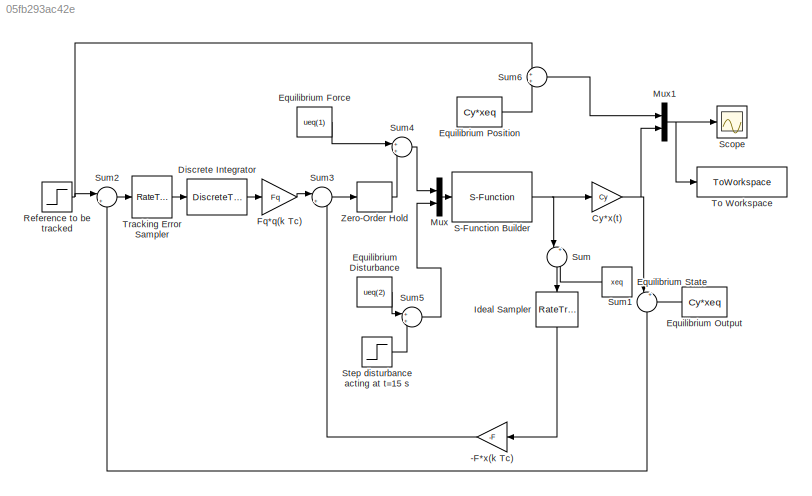
MODEL slx_05fb293ac42e
KIND model
CONFIG AbsTol = auto
CONFIG EnableMultiTasking = off
CONFIG FixedStep = auto
CONFIG MaxStep = auto
CONFIG MinStep = auto
CONFIG RelTol = 1e-3
CONFIG SampleTimeConstraint = Unconstrained
CONFIG SolverName = VariableStepAuto
CONFIG StartTime = 0.0
CONFIG StopTime = tfin
BLOCK [Gain] -F*x(k Tc)
  Gain = -F
  Multiplication = Matrix(K*u)
  NameLocation = top
BLOCK [Gain] Cy*x(t)
  Gain = Cy
  Multiplication = Matrix(K*u)
BLOCK [DiscreteTransferFcn] Discrete Integrator
  Denominator = [1 -1]
  InputPortMap = u0
  Ports = [1, 1]
  SampleTime = Ts
BLOCK [Constant] Equilibrium Disturbance
  Value = ueq(2)
BLOCK [Constant] Equilibrium Force
  Value = ueq(1)
BLOCK [Constant] Equilibrium Output
  NameLocation = top
  Value = Cy*xeq
BLOCK [Constant] Equilibrium Position
  Value = Cy*xeq
BLOCK [Constant] Equilibrium State
  NameLocation = top
  Value = xeq
BLOCK [Gain] Fq*q(k Tc)
  Gain = Fq
  Multiplication = Matrix(K*u)
BLOCK [RateTransition] Ideal Sampler
  NameLocation = left
  OutPortSampleTime = Ts
BLOCK [Mux] Mux
  DisplayOption = bar
  Inputs = 2
  Ports = [2, 1]
BLOCK [Mux] Mux1
  DisplayOption = bar
  Inputs = 2
  Ports = [2, 1]
BLOCK [Step] Reference to be tracked
  After = r
  SampleTime = 0
  Time = 0
BLOCK [S-Function] S-Function Builder
  CopyFcn = set_param(gcbh,'LinkStatus','none')
  EnableBusSupport = off
  FunctionName = platform
  OpenFcn = sfunctionwizard(gcbh)
  Parameters = x0,parameters
  Ports = [1, 1]
  SFcnIsStateOwnerBlock = off
  SFunctionDeploymentMode = off
  SFunctionModules = platform_wrapper
BLOCK [Scope] Scope
  Floating = off
  NumInputPorts = 1
  Ports = [1]
  ScopeSpecificationString = Simulink.scopes.TimeScopeBlockCfg('CurrentConfiguration', extmgr.ConfigurationSet(extmgr.Configuration('Core','General UI',true),extmgr.Configuration('Core','Source UI',true),extmgr.Configuration('Sources','WiredSimulink',true),extmgr.Configuration('Visuals','Time Domain',true,'SerializedDisplays',{struct('MinYLimReal','-0.44498','MaxYLimReal','2.03923','YLabelReal','','MinYLimMag','0.00000','MaxY...<+1334ch>
BLOCK [Step] Step disturbance acting at t=15 s
  SampleTime = 0
  Time = 15
BLOCK [Sum] Sum
  Inputs = |+-
  NameLocation = left
  Ports = [2, 1]
BLOCK [Sum] Sum1
  Inputs = |+-
  NameLocation = left
  Ports = [2, 1]
BLOCK [Sum] Sum2
  Inputs = |+-
  Ports = [2, 1]
BLOCK [Sum] Sum3
  Inputs = |++
  Ports = [2, 1]
BLOCK [Sum] Sum4
  Ports = [2, 1]
BLOCK [Sum] Sum5
  Ports = [2, 1]
BLOCK [Sum] Sum6
  Ports = [2, 1]
BLOCK [ToWorkspace] To Workspace
  FixptAsFi = on
  MaxDataPoints = inf
  Ports = [1]
  SampleTime = -1
  VariableName = output
BLOCK [RateTransition] Tracking Error Sampler
  OutPortSampleTime = Ts
BLOCK [ZeroOrderHold] Zero-Order Hold
  SampleTime = -1
LINE -F*x(k Tc):1 -> Sum3:2
NET Cy*x(t):1 -> Mux1:2, Sum1:1
LINE Discrete Integrator:1 -> Fq*q(k Tc):1
LINE Equilibrium Disturbance:1 -> Sum5:1
LINE Equilibrium Force:1 -> Sum4:1
LINE Equilibrium Output:1 -> Sum1:2
LINE Equilibrium Position:1 -> Sum6:2
LINE Equilibrium State:1 -> Sum:2
LINE Fq*q(k Tc):1 -> Sum3:1
LINE Ideal Sampler:1 -> -F*x(k Tc):1
NET Mux1:1 -> Scope:1, To Workspace:1
LINE Mux:1 -> S-Function Builder:1
NET Reference to be tracked:1 -> Sum2:1, Sum6:1
NET S-Function Builder:1 -> Cy*x(t):1, Sum:1
LINE Step disturbance acting at t=15 s:1 -> Sum5:2
LINE Sum1:1 -> Sum2:2
LINE Sum2:1 -> Tracking Error Sampler:1
LINE Sum3:1 -> Zero-Order Hold:1
LINE Sum4:1 -> Mux:1
LINE Sum5:1 -> Mux:2
LINE Sum6:1 -> Mux1:1
LINE Sum:1 -> Ideal Sampler:1
LINE Tracking Error Sampler:1 -> Discrete Integrator:1
LINE Zero-Order Hold:1 -> Sum4:2
note: NET lines group one-source signal fan-out (src -> all destinations, sorted); 1:1 wires keep LINE
